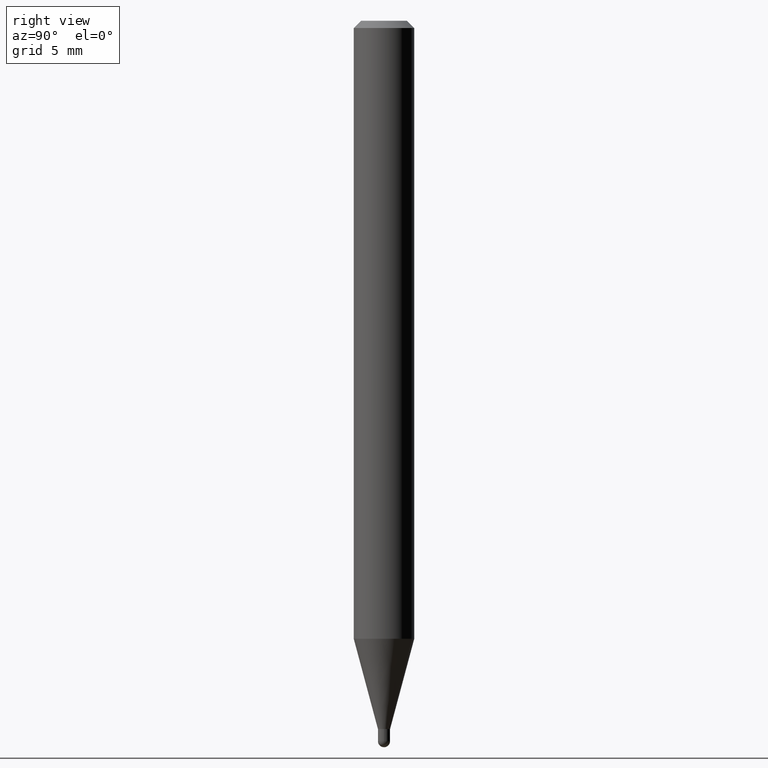
[diagram: clean part render]
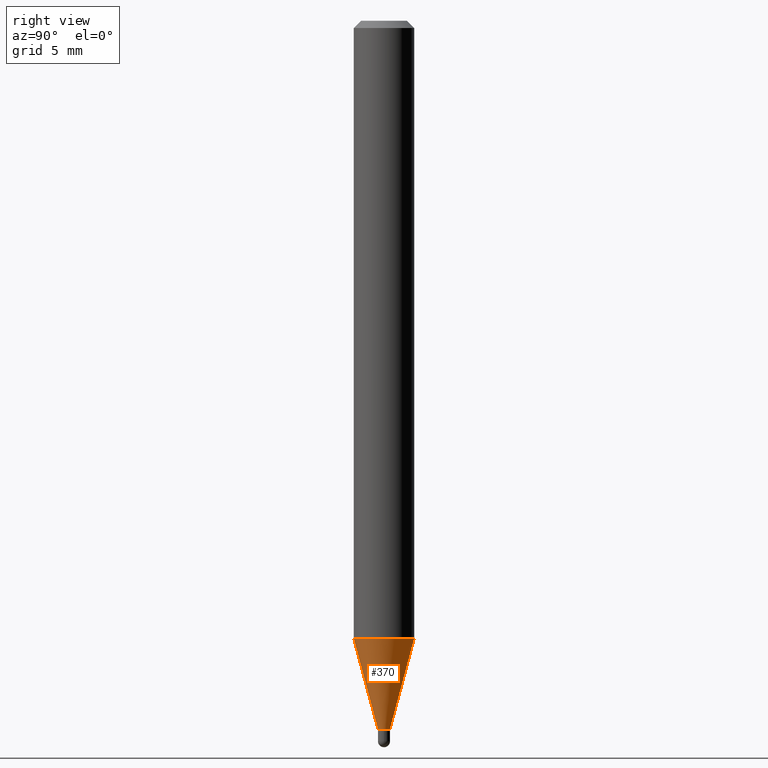
[diagram: same view with one face highlighted and labeled with its STEP entity id]
A machine part, right view. The second image highlights one B-rep face of the part: STEP entity #370.
In plain terms, the highlighted conical surface has half-angle 15 deg.
Its self-contained STEP definition (entity closure, byte-faithful):
#7 = DIRECTION ( 'NONE',  ( -2.445478956765124667E-29, 3.491466802634867700E-15, 1.000000000000000000 ) ) ;
#8 = AXIS2_PLACEMENT_3D ( 'NONE', #221, #7, #485 ) ;
#10 = CARTESIAN_POINT ( 'NONE',  ( 3.576512974268995298E-29, -5.106270198853495599E-15, -1.462500000000000355 ) ) ;
#11 = ORIENTED_EDGE ( 'NONE', *, *, #216, .F. ) ;
#53 = FACE_OUTER_BOUND ( 'NONE', #452, .T. ) ;
#62 = LINE ( 'NONE', #226, #211 ) ;
#65 = CIRCLE ( 'NONE', #400, 0.01249999999999992610 ) ;
#103 = VECTOR ( 'NONE', #203, 39.37007874015748854 ) ;
#107 = DIRECTION ( 'NONE',  ( 1.839019923739652380E-15, 0.2588190451025322858, 0.9659258262890650926 ) ) ;
#115 = LINE ( 'NONE', #161, #103 ) ;
#126 = EDGE_CURVE ( 'NONE', #250, #296, #432, .T. ) ;
#127 = ORIENTED_EDGE ( 'NONE', *, *, #126, .F. ) ;
#152 = VERTEX_POINT ( 'NONE', #404 ) ;
#161 = CARTESIAN_POINT ( 'NONE',  ( -8.728703347104204628E-17, -0.01250000000000503313, -1.462500000000000355 ) ) ;
#164 = CARTESIAN_POINT ( 'NONE',  ( 3.120180388494611084E-29, -4.454753623834846326E-15, -1.275897459621562424 ) ) ;
#166 = ORIENTED_EDGE ( 'NONE', *, *, #325, .T. ) ;
#203 = DIRECTION ( 'NONE',  ( -1.807323732225381415E-15, -0.2588190451025255134, 0.9659258262890669799 ) ) ;
#211 = VECTOR ( 'NONE', #107, 39.37007874015748143 ) ;
#216 = EDGE_CURVE ( 'NONE', #350, #250, #115, .T. ) ;
#221 = CARTESIAN_POINT ( 'NONE',  ( 3.576512974268995298E-29, -5.106270198853495599E-15, -1.462500000000000355 ) ) ;
#226 = CARTESIAN_POINT ( 'NONE',  ( 8.881784197004774341E-17, 0.01249999999999481907, -1.462500000000000355 ) ) ;
#242 = CONICAL_SURFACE ( 'NONE', #8, 0.01249999999999992610, 0.2617993877991578455 ) ;
#250 = VERTEX_POINT ( 'NONE', #358 ) ;
#296 = VERTEX_POINT ( 'NONE', #419 ) ;
#325 = EDGE_CURVE ( 'NONE', #350, #152, #65, .T. ) ;
#327 = AXIS2_PLACEMENT_3D ( 'NONE', #164, #442, #401 ) ;
#329 = DIRECTION ( 'NONE',  ( -6.982962677686266711E-15, -1.000000000000000000, 0.000000000000000000 ) ) ;
#350 = VERTEX_POINT ( 'NONE', #492 ) ;
#358 = CARTESIAN_POINT ( 'NONE',  ( -4.364351673553606080E-16, -0.06250000000000446865, -1.275897459621562202 ) ) ;
#370 = ADVANCED_FACE ( 'NONE', ( #53 ), #242, .T. ) ;
#400 = AXIS2_PLACEMENT_3D ( 'NONE', #10, #454, #329 ) ;
#401 = DIRECTION ( 'NONE',  ( -6.982962677686265922E-15, -1.000000000000000000, 4.370956789862821150E-15 ) ) ;
#404 = CARTESIAN_POINT ( 'NONE',  ( 2.664535259100708892E-16, 0.01249999999999481907, -1.462500000000000355 ) ) ;
#419 = CARTESIAN_POINT ( 'NONE',  ( 4.440892098500936776E-16, 0.06249999999999554523, -1.275897459621562646 ) ) ;
#432 = CIRCLE ( 'NONE', #327, 0.06250000000000000000 ) ;
#442 = DIRECTION ( 'NONE',  ( -2.445478956765124667E-29, 3.491466802634867700E-15, 1.000000000000000000 ) ) ;
#444 = ORIENTED_EDGE ( 'NONE', *, *, #464, .T. ) ;
#452 = EDGE_LOOP ( 'NONE', ( #166, #444, #127, #11 ) ) ;
#454 = DIRECTION ( 'NONE',  ( -2.445478956765124667E-29, 3.491466802634867700E-15, 1.000000000000000000 ) ) ;
#464 = EDGE_CURVE ( 'NONE', #152, #296, #62, .T. ) ;
#485 = DIRECTION ( 'NONE',  ( -6.982962677686266711E-15, -1.000000000000000000, 0.000000000000000000 ) ) ;
#492 = CARTESIAN_POINT ( 'NONE',  ( -8.728703347104204628E-17, -0.01250000000000503313, -1.462500000000000355 ) ) ;